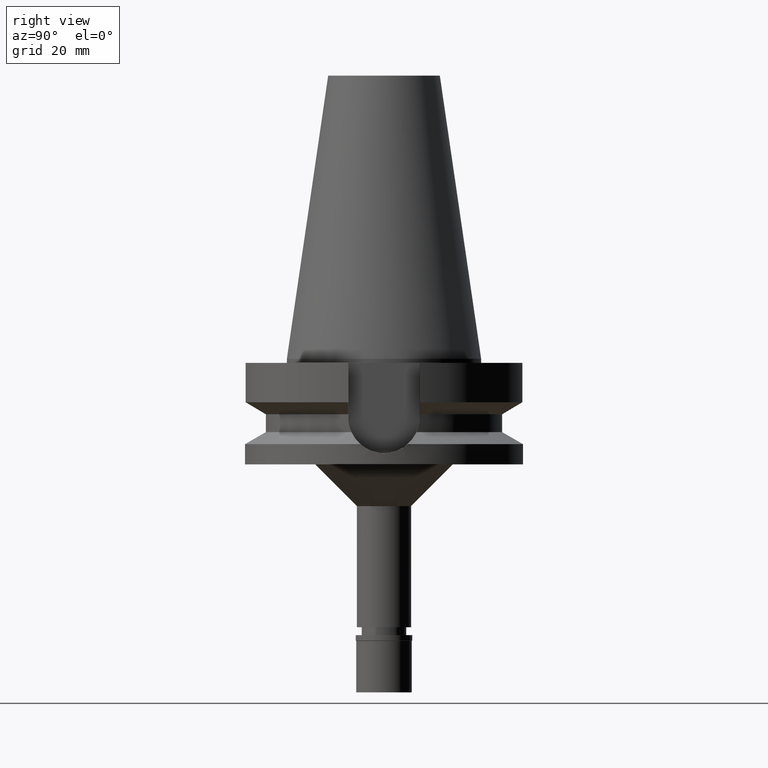
[diagram: clean part render]
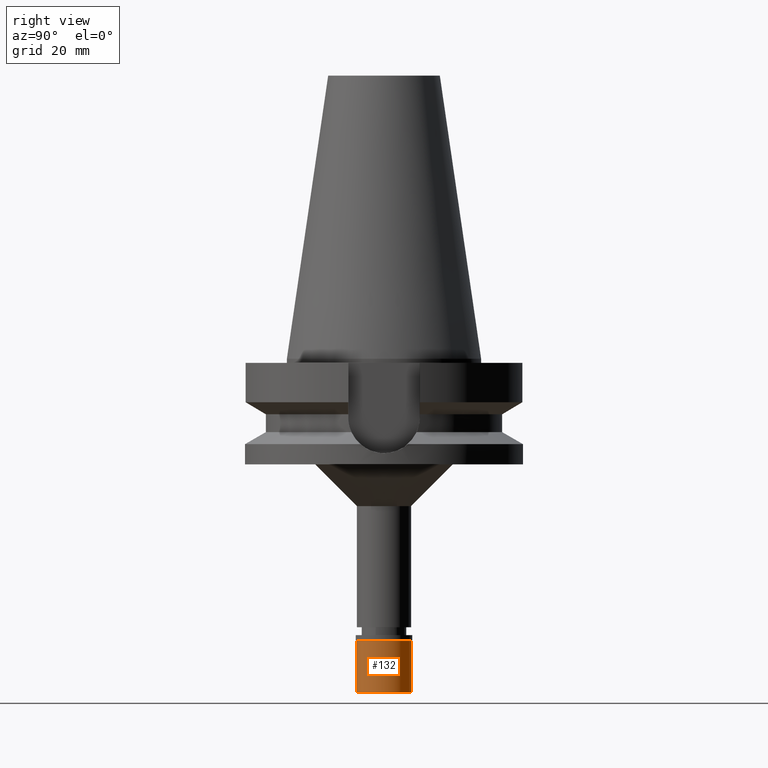
[diagram: same view with one face highlighted and labeled with its STEP entity id]
A machine part, right view. The second image highlights one B-rep face of the part: STEP entity #132.
In plain terms, the highlighted cylindrical surface (edge-blend (fillet) strip) has radius 10 mm, axis along (0, 0, -1).
Its self-contained STEP definition (entity closure, byte-faithful):
#54 = AXIS2_PLACEMENT_3D ( 'NONE', #1136, #1191, #2659 ) ;
#132 = ADVANCED_FACE ( 'NONE', ( #713 ), #1635, .T. ) ;
#189 = EDGE_CURVE ( 'NONE', #2850, #2985, #1190, .T. ) ;
#466 = CARTESIAN_POINT ( 'NONE',  ( 0.0000000000000000000, 10.00000000000000000, -2.100000000000000089 ) ) ;
#502 = DIRECTION ( 'NONE',  ( 0.0000000000000000000, 0.0000000000000000000, -1.000000000000000000 ) ) ;
#560 = CIRCLE ( 'NONE', #2135, 10.00000000000000000 ) ;
#608 = ORIENTED_EDGE ( 'NONE', *, *, #2022, .T. ) ;
#713 = FACE_OUTER_BOUND ( 'NONE', #1476, .T. ) ;
#852 = VECTOR ( 'NONE', #502, 1000.000000000000000 ) ;
#963 = AXIS2_PLACEMENT_3D ( 'NONE', #2111, #2858, #2656 ) ;
#1045 = CARTESIAN_POINT ( 'NONE',  ( 0.0000000000000000000, 10.00000000000000000, -2.100000000000000089 ) ) ;
#1136 = CARTESIAN_POINT ( 'NONE',  ( 0.0000000000000000000, 0.0000000000000000000, -20.60000000000000142 ) ) ;
#1164 = CARTESIAN_POINT ( 'NONE',  ( 0.0000000000000000000, 0.0000000000000000000, -2.100000000000000089 ) ) ;
#1190 = LINE ( 'NONE', #466, #1967 ) ;
#1191 = DIRECTION ( 'NONE',  ( 0.0000000000000000000, 0.0000000000000000000, 1.000000000000000000 ) ) ;
#1476 = EDGE_LOOP ( 'NONE', ( #608, #2008, #3029, #2531 ) ) ;
#1567 = CARTESIAN_POINT ( 'NONE',  ( 0.0000000000000000000, 10.00000000000000000, -20.60000000000000142 ) ) ;
#1635 = CYLINDRICAL_SURFACE ( 'NONE', #963, 10.00000000000000000 ) ;
#1702 = CARTESIAN_POINT ( 'NONE',  ( 0.0000000000000000000, -10.00000000000000000, -2.100000000000000089 ) ) ;
#1710 = LINE ( 'NONE', #2678, #852 ) ;
#1829 = CIRCLE ( 'NONE', #54, 10.00000000000000000 ) ;
#1947 = EDGE_CURVE ( 'NONE', #2989, #2985, #1829, .T. ) ;
#1967 = VECTOR ( 'NONE', #2156, 1000.000000000000000 ) ;
#2008 = ORIENTED_EDGE ( 'NONE', *, *, #2667, .T. ) ;
#2022 = EDGE_CURVE ( 'NONE', #2850, #2803, #560, .T. ) ;
#2111 = CARTESIAN_POINT ( 'NONE',  ( 0.0000000000000000000, 0.0000000000000000000, 0.0000000000000000000 ) ) ;
#2135 = AXIS2_PLACEMENT_3D ( 'NONE', #1164, #2616, #3092 ) ;
#2156 = DIRECTION ( 'NONE',  ( 0.0000000000000000000, 0.0000000000000000000, -1.000000000000000000 ) ) ;
#2272 = CARTESIAN_POINT ( 'NONE',  ( 0.0000000000000000000, -10.00000000000000000, -20.60000000000000142 ) ) ;
#2531 = ORIENTED_EDGE ( 'NONE', *, *, #189, .F. ) ;
#2616 = DIRECTION ( 'NONE',  ( 0.0000000000000000000, 0.0000000000000000000, -1.000000000000000000 ) ) ;
#2656 = DIRECTION ( 'NONE',  ( 0.0000000000000000000, -1.000000000000000000, 0.0000000000000000000 ) ) ;
#2659 = DIRECTION ( 'NONE',  ( 0.0000000000000000000, -1.000000000000000000, 0.0000000000000000000 ) ) ;
#2667 = EDGE_CURVE ( 'NONE', #2803, #2989, #1710, .T. ) ;
#2678 = CARTESIAN_POINT ( 'NONE',  ( 0.0000000000000000000, -10.00000000000000000, -2.100000000000000089 ) ) ;
#2803 = VERTEX_POINT ( 'NONE', #1702 ) ;
#2850 = VERTEX_POINT ( 'NONE', #1045 ) ;
#2858 = DIRECTION ( 'NONE',  ( 0.0000000000000000000, 0.0000000000000000000, -1.000000000000000000 ) ) ;
#2985 = VERTEX_POINT ( 'NONE', #1567 ) ;
#2989 = VERTEX_POINT ( 'NONE', #2272 ) ;
#3029 = ORIENTED_EDGE ( 'NONE', *, *, #1947, .T. ) ;
#3092 = DIRECTION ( 'NONE',  ( 0.0000000000000000000, 1.000000000000000000, 0.0000000000000000000 ) ) ;